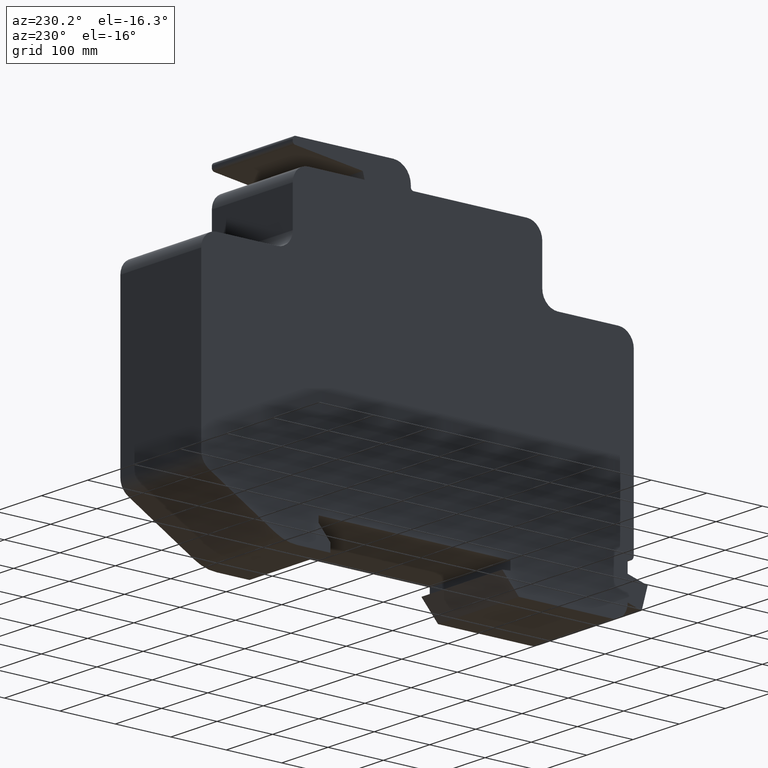
[diagram: clean part render]
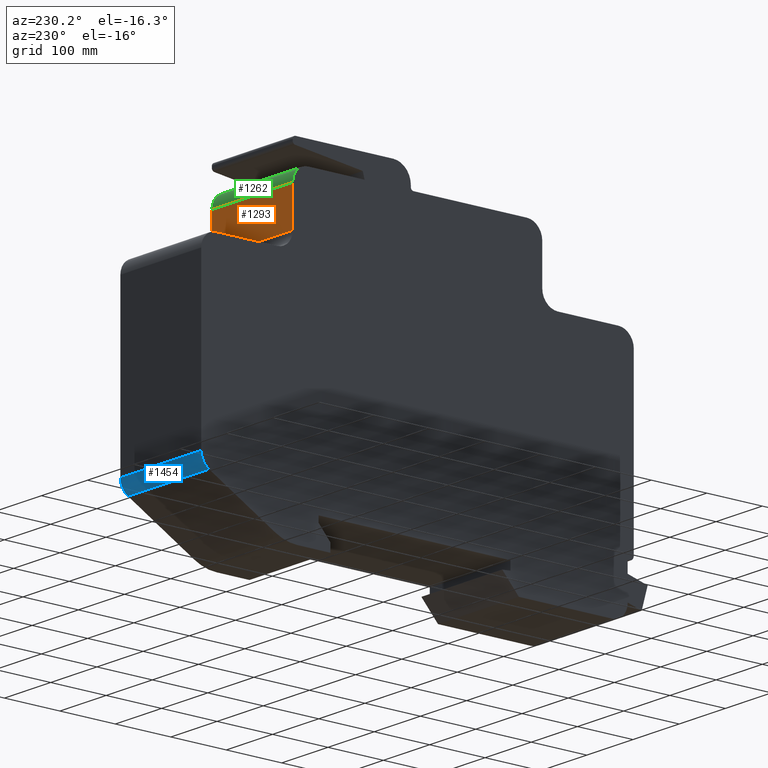
[diagram: same view with three faces highlighted in distinct colors, each labeled with its STEP entity id]
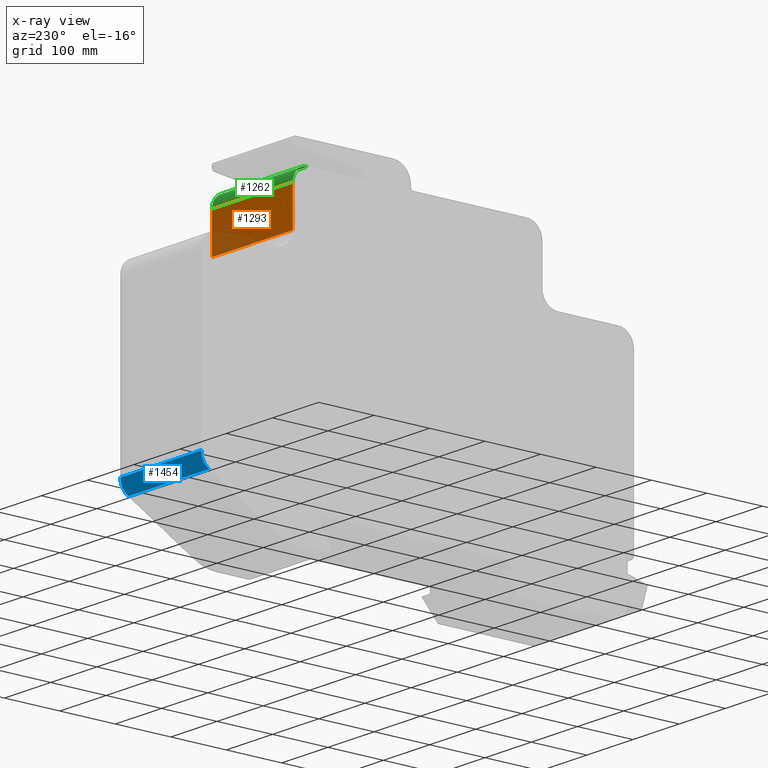
[diagram: x-ray of the same camera — body ghosted, the three highlighted faces saturated]
A machine part, auxiliary view with three faces highlighted in distinct colors.
The next image is the same camera in x-ray (body ghosted, the three faces saturated) — at least one of them is partly hidden behind the body in this view.
Their STEP definitions:

[orange] entity #1293 — the highlighted planar face has unit normal (0, 1, 0).
#1235=CARTESIAN_POINT('',(175.00000000000028,46.799999999999926,471.99999999999994));
#1236=VERTEX_POINT('',#1235);
#1244=CARTESIAN_POINT('',(0.0,46.799999999999926,471.99999999999994));
#1245=VERTEX_POINT('',#1244);
#1246=CARTESIAN_POINT('',(0.0,46.799999999999926,471.99999999999994));
#1247=DIRECTION('',(1.0,0.0,0.0));
#1248=VECTOR('',#1247,175.00000000000028);
#1249=LINE('',#1246,#1248);
#1250=EDGE_CURVE('',#1245,#1236,#1249,.T.);
#1263=CARTESIAN_POINT('',(0.0,46.799999999999926,471.99999999999994));
#1264=DIRECTION('',(0.0,1.0,0.0));
#1265=DIRECTION('',(0.0,0.0,1.0));
#1266=AXIS2_PLACEMENT_3D('',#1263,#1264,#1265);
#1267=PLANE('',#1266);
#1268=CARTESIAN_POINT('',(175.00000000000028,46.799999999999784,403.0));
#1269=VERTEX_POINT('',#1268);
#1270=CARTESIAN_POINT('',(175.00000000000028,46.799999999999926,471.99999999999994));
#1271=DIRECTION('',(0.0,0.0,-1.0));
#1272=VECTOR('',#1271,69.0);
#1273=LINE('',#1270,#1272);
#1274=EDGE_CURVE('',#1236,#1269,#1273,.T.);
#1275=ORIENTED_EDGE('',*,*,#1274,.T.);
#1276=CARTESIAN_POINT('',(0.0,46.799999999999784,403.0));
#1277=VERTEX_POINT('',#1276);
#1278=CARTESIAN_POINT('',(0.0,46.799999999999784,403.0));
#1279=DIRECTION('',(1.0,0.0,0.0));
#1280=VECTOR('',#1279,175.00000000000028);
#1281=LINE('',#1278,#1280);
#1282=EDGE_CURVE('',#1277,#1269,#1281,.T.);
#1283=ORIENTED_EDGE('',*,*,#1282,.F.);
#1284=CARTESIAN_POINT('',(0.0,46.799999999999926,471.99999999999994));
#1285=DIRECTION('',(0.0,0.0,-1.0));
#1286=VECTOR('',#1285,69.0);
#1287=LINE('',#1284,#1286);
#1288=EDGE_CURVE('',#1245,#1277,#1287,.T.);
#1289=ORIENTED_EDGE('',*,*,#1288,.F.);
#1290=ORIENTED_EDGE('',*,*,#1250,.T.);
#1291=EDGE_LOOP('',(#1275,#1283,#1289,#1290));
#1292=FACE_OUTER_BOUND('',#1291,.T.);
#1293=ADVANCED_FACE('',(#1292),#1267,.T.);

[blue] entity #1454 — the highlighted cylindrical surface (edge-blend (fillet) strip) has radius 28 mm, axis along (1, 0, 0).
#1396=CARTESIAN_POINT('',(175.00000000000028,211.79999999999978,54.143471326499935));
#1397=VERTEX_POINT('',#1396);
#1404=CARTESIAN_POINT('',(0.0,211.79999999999978,54.143471326499935));
#1405=VERTEX_POINT('',#1404);
#1406=CARTESIAN_POINT('',(0.0,211.79999999999978,54.143471326499935));
#1407=DIRECTION('',(1.0,0.0,0.0));
#1408=VECTOR('',#1407,175.00000000000028);
#1409=LINE('',#1406,#1408);
#1410=EDGE_CURVE('',#1405,#1397,#1409,.T.);
#1422=CARTESIAN_POINT('',(0.0,183.79999999999995,54.143471326499494));
#1423=DIRECTION('',(1.0,0.0,0.0));
#1424=DIRECTION('',(0.0,0.866324497674392,-0.499481595986491));
#1425=AXIS2_PLACEMENT_3D('',#1422,#1423,#1424);
#1426=CYLINDRICAL_SURFACE('',#1425,27.999999999999623);
#1427=CARTESIAN_POINT('',(175.00000000000028,197.82901557516368,29.911535333025952));
#1428=VERTEX_POINT('',#1427);
#1429=CARTESIAN_POINT('',(175.00000000000028,183.79999999999995,54.143471326499494));
#1430=DIRECTION('',(-1.0,0.0,0.0));
#1431=DIRECTION('',(0.0,0.866324497674392,-0.499481595986491));
#1432=AXIS2_PLACEMENT_3D('',#1429,#1430,#1431);
#1433=CIRCLE('',#1432,27.999999999999623);
#1434=EDGE_CURVE('',#1397,#1428,#1433,.T.);
#1435=ORIENTED_EDGE('',*,*,#1434,.T.);
#1436=CARTESIAN_POINT('',(0.0,197.82901557516368,29.911535333025952));
#1437=VERTEX_POINT('',#1436);
#1438=CARTESIAN_POINT('',(0.0,197.82901557516368,29.911535333025952));
#1439=DIRECTION('',(1.0,0.0,0.0));
#1440=VECTOR('',#1439,175.00000000000028);
#1441=LINE('',#1438,#1440);
#1442=EDGE_CURVE('',#1437,#1428,#1441,.T.);
#1443=ORIENTED_EDGE('',*,*,#1442,.F.);
#1444=CARTESIAN_POINT('',(0.0,183.79999999999995,54.143471326499494));
#1445=DIRECTION('',(-1.0,0.0,0.0));
#1446=DIRECTION('',(0.0,0.866324497674392,-0.499481595986491));
#1447=AXIS2_PLACEMENT_3D('',#1444,#1445,#1446);
#1448=CIRCLE('',#1447,27.999999999999623);
#1449=EDGE_CURVE('',#1405,#1437,#1448,.T.);
#1450=ORIENTED_EDGE('',*,*,#1449,.F.);
#1451=ORIENTED_EDGE('',*,*,#1410,.T.);
#1452=EDGE_LOOP('',(#1435,#1443,#1450,#1451));
#1453=FACE_OUTER_BOUND('',#1452,.T.);
#1454=ADVANCED_FACE('',(#1453),#1426,.T.);

[green] entity #1262 — the highlighted cylindrical surface (edge-blend (fillet) strip) has radius 28 mm, axis along (1, 0, 0).
#1204=CARTESIAN_POINT('',(175.00000000000028,18.799999999999955,500.00000000000006));
#1205=VERTEX_POINT('',#1204);
#1212=CARTESIAN_POINT('',(0.0,18.799999999999955,500.00000000000006));
#1213=VERTEX_POINT('',#1212);
#1214=CARTESIAN_POINT('',(0.0,18.799999999999955,500.00000000000006));
#1215=DIRECTION('',(1.0,0.0,0.0));
#1216=VECTOR('',#1215,175.00000000000028);
#1217=LINE('',#1214,#1216);
#1218=EDGE_CURVE('',#1213,#1205,#1217,.T.);
#1230=CARTESIAN_POINT('',(0.0,18.799999999999955,472.0));
#1231=DIRECTION('',(1.0,0.0,0.0));
#1232=DIRECTION('',(0.0,0.707106781186549,0.707106781186546));
#1233=AXIS2_PLACEMENT_3D('',#1230,#1231,#1232);
#1234=CYLINDRICAL_SURFACE('',#1233,28.000000000000039);
#1235=CARTESIAN_POINT('',(175.00000000000028,46.799999999999926,471.99999999999994));
#1236=VERTEX_POINT('',#1235);
#1237=CARTESIAN_POINT('',(175.00000000000028,18.799999999999955,472.0));
#1238=DIRECTION('',(-1.0,0.0,0.0));
#1239=DIRECTION('',(0.0,0.707106781186549,0.707106781186546));
#1240=AXIS2_PLACEMENT_3D('',#1237,#1238,#1239);
#1241=CIRCLE('',#1240,28.000000000000039);
#1242=EDGE_CURVE('',#1205,#1236,#1241,.T.);
#1243=ORIENTED_EDGE('',*,*,#1242,.T.);
#1244=CARTESIAN_POINT('',(0.0,46.799999999999926,471.99999999999994));
#1245=VERTEX_POINT('',#1244);
#1246=CARTESIAN_POINT('',(0.0,46.799999999999926,471.99999999999994));
#1247=DIRECTION('',(1.0,0.0,0.0));
#1248=VECTOR('',#1247,175.00000000000028);
#1249=LINE('',#1246,#1248);
#1250=EDGE_CURVE('',#1245,#1236,#1249,.T.);
#1251=ORIENTED_EDGE('',*,*,#1250,.F.);
#1252=CARTESIAN_POINT('',(0.0,18.799999999999955,472.0));
#1253=DIRECTION('',(-1.0,0.0,0.0));
#1254=DIRECTION('',(0.0,0.707106781186549,0.707106781186546));
#1255=AXIS2_PLACEMENT_3D('',#1252,#1253,#1254);
#1256=CIRCLE('',#1255,28.000000000000039);
#1257=EDGE_CURVE('',#1213,#1245,#1256,.T.);
#1258=ORIENTED_EDGE('',*,*,#1257,.F.);
#1259=ORIENTED_EDGE('',*,*,#1218,.T.);
#1260=EDGE_LOOP('',(#1243,#1251,#1258,#1259));
#1261=FACE_OUTER_BOUND('',#1260,.T.);
#1262=ADVANCED_FACE('',(#1261),#1234,.T.);